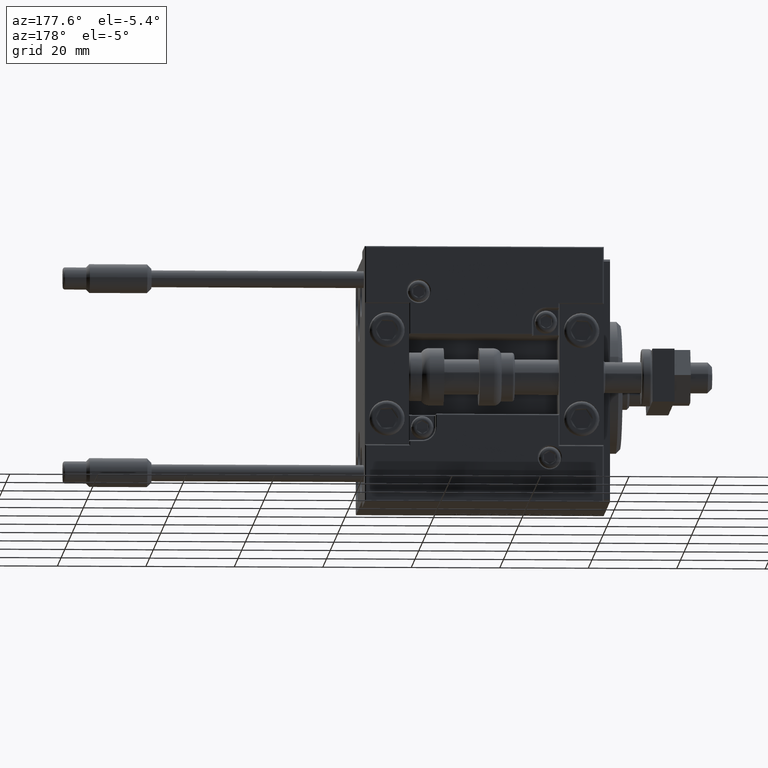
[diagram: clean part render]
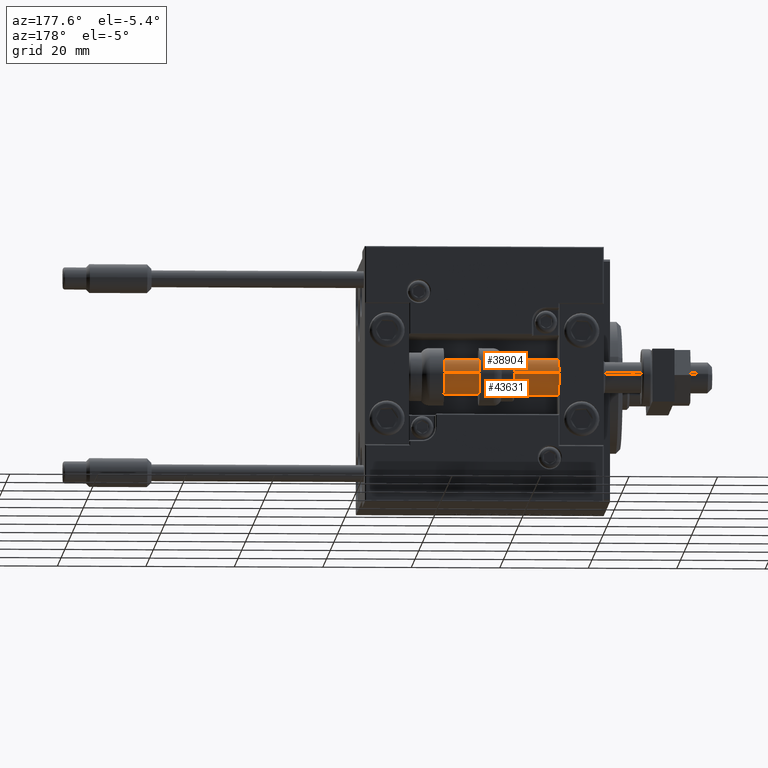
[diagram: same view with one multi-face feature highlighted, each face labeled with its STEP entity id]
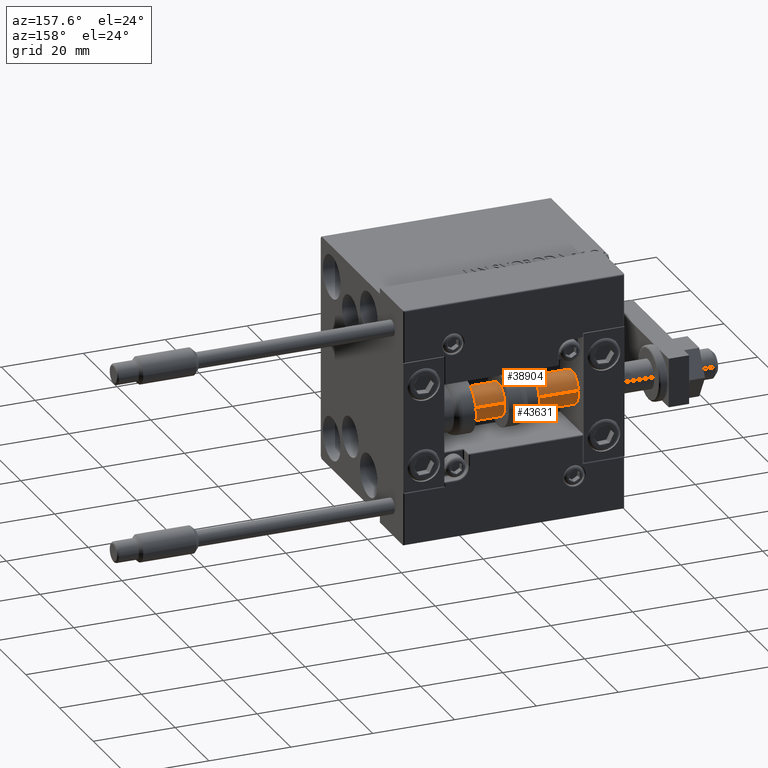
[diagram: same view with one multi-face feature highlighted, each face labeled with its STEP entity id]
A machine part, auxiliary view. The highlighted faces form ONE feature: a constant-radius fillet chain: 2 tangent blend faces with common blend radius 4 mm. The faces share edges in the B-rep.
A second angle (auxiliary view) of the same feature is appended — it is thin or edge-on in the first view.
Their STEP definitions:
[1] entity #43631 (Cylinder):
#758 = EDGE_LOOP ( 'NONE', ( #39339, #4935, #8708, #42799 ) ) ;
#815 = VECTOR ( 'NONE', #17333, 1000.000000000000000 ) ;
#1729 = LINE ( 'NONE', #36741, #815 ) ;
#2586 = EDGE_CURVE ( 'NONE', #20978, #32839, #1729, .T. ) ;
#3585 = AXIS2_PLACEMENT_3D ( 'NONE', #31029, #27203, #47374 ) ;
#4935 = ORIENTED_EDGE ( 'NONE', *, *, #31356, .F. ) ;
#8708 = ORIENTED_EDGE ( 'NONE', *, *, #2586, .T. ) ;
#9788 = CIRCLE ( 'NONE', #47325, 4.000000000000000000 ) ;
#12633 = CARTESIAN_POINT ( 'NONE',  ( 4.000000000000000000, 4.898587196589412829E-16, 56.00000000000000000 ) ) ;
#15430 = EDGE_CURVE ( 'NONE', #34170, #38090, #38515, .T. ) ;
#17333 = DIRECTION ( 'NONE',  ( -0.000000000000000000, -0.000000000000000000, -1.000000000000000000 ) ) ;
#17343 = DIRECTION ( 'NONE',  ( 0.000000000000000000, 0.000000000000000000, 1.000000000000000000 ) ) ;
#17589 = DIRECTION ( 'NONE',  ( 1.000000000000000000, 0.000000000000000000, 0.000000000000000000 ) ) ;
#20978 = VERTEX_POINT ( 'NONE', #35016 ) ;
#25060 = FACE_OUTER_BOUND ( 'NONE', #758, .T. ) ;
#27203 = DIRECTION ( 'NONE',  ( -0.000000000000000000, -0.000000000000000000, 1.000000000000000000 ) ) ;
#28633 = CYLINDRICAL_SURFACE ( 'NONE', #28828, 4.000000000000000000 ) ;
#28828 = AXIS2_PLACEMENT_3D ( 'NONE', #40901, #36565, #47803 ) ;
#30097 = CARTESIAN_POINT ( 'NONE',  ( 4.000000000000000000, 4.898587196589412829E-16, 2.000000000000036415 ) ) ;
#31029 = CARTESIAN_POINT ( 'NONE',  ( 0.000000000000000000, 0.000000000000000000, 2.000000000000036415 ) ) ;
#31356 = EDGE_CURVE ( 'NONE', #20978, #34170, #9788, .T. ) ;
#32839 = VERTEX_POINT ( 'NONE', #37624 ) ;
#34170 = VERTEX_POINT ( 'NONE', #49416 ) ;
#35016 = CARTESIAN_POINT ( 'NONE',  ( -4.000000000000000000, 0.000000000000000000, 56.00000000000000000 ) ) ;
#36565 = DIRECTION ( 'NONE',  ( -0.000000000000000000, -0.000000000000000000, -1.000000000000000000 ) ) ;
#36741 = CARTESIAN_POINT ( 'NONE',  ( -4.000000000000000000, 0.000000000000000000, 56.00000000000000000 ) ) ;
#37624 = CARTESIAN_POINT ( 'NONE',  ( -4.000000000000000000, 0.000000000000000000, 2.000000000000036415 ) ) ;
#37865 = CIRCLE ( 'NONE', #3585, 4.000000000000000000 ) ;
#38090 = VERTEX_POINT ( 'NONE', #30097 ) ;
#38515 = LINE ( 'NONE', #12633, #38611 ) ;
#38611 = VECTOR ( 'NONE', #46427, 1000.000000000000000 ) ;
#39339 = ORIENTED_EDGE ( 'NONE', *, *, #15430, .F. ) ;
#40901 = CARTESIAN_POINT ( 'NONE',  ( 0.000000000000000000, 0.000000000000000000, 56.00000000000000000 ) ) ;
#42799 = ORIENTED_EDGE ( 'NONE', *, *, #49292, .T. ) ;
#43631 = ADVANCED_FACE ( 'NONE', ( #25060 ), #28633, .T. ) ;
#44636 = CARTESIAN_POINT ( 'NONE',  ( 0.000000000000000000, 0.000000000000000000, 56.00000000000000000 ) ) ;
#46427 = DIRECTION ( 'NONE',  ( -0.000000000000000000, -0.000000000000000000, -1.000000000000000000 ) ) ;
#47325 = AXIS2_PLACEMENT_3D ( 'NONE', #44636, #17343, #17589 ) ;
#47374 = DIRECTION ( 'NONE',  ( 1.000000000000000000, 0.000000000000000000, 0.000000000000000000 ) ) ;
#47803 = DIRECTION ( 'NONE',  ( -1.000000000000000000, 0.000000000000000000, 0.000000000000000000 ) ) ;
#49292 = EDGE_CURVE ( 'NONE', #32839, #38090, #37865, .T. ) ;
#49416 = CARTESIAN_POINT ( 'NONE',  ( 4.000000000000000000, 4.898587196589412829E-16, 56.00000000000000000 ) ) ;
[2] entity #38904 (Cylinder):
#383 = CARTESIAN_POINT ( 'NONE',  ( 0.000000000000000000, 0.000000000000000000, 56.00000000000000000 ) ) ;
#815 = VECTOR ( 'NONE', #17333, 1000.000000000000000 ) ;
#1325 = DIRECTION ( 'NONE',  ( 0.000000000000000000, 0.000000000000000000, 1.000000000000000000 ) ) ;
#1729 = LINE ( 'NONE', #36741, #815 ) ;
#2586 = EDGE_CURVE ( 'NONE', #20978, #32839, #1729, .T. ) ;
#10007 = ORIENTED_EDGE ( 'NONE', *, *, #2586, .F. ) ;
#11994 = DIRECTION ( 'NONE',  ( -1.000000000000000000, 0.000000000000000000, 0.000000000000000000 ) ) ;
#12633 = CARTESIAN_POINT ( 'NONE',  ( 4.000000000000000000, 4.898587196589412829E-16, 56.00000000000000000 ) ) ;
#14339 = DIRECTION ( 'NONE',  ( 1.000000000000000000, 0.000000000000000000, 0.000000000000000000 ) ) ;
#15430 = EDGE_CURVE ( 'NONE', #34170, #38090, #38515, .T. ) ;
#16843 = CYLINDRICAL_SURFACE ( 'NONE', #18885, 4.000000000000000000 ) ;
#17034 = ORIENTED_EDGE ( 'NONE', *, *, #37555, .F. ) ;
#17333 = DIRECTION ( 'NONE',  ( -0.000000000000000000, -0.000000000000000000, -1.000000000000000000 ) ) ;
#17432 = DIRECTION ( 'NONE',  ( 1.000000000000000000, 0.000000000000000000, 0.000000000000000000 ) ) ;
#18885 = AXIS2_PLACEMENT_3D ( 'NONE', #35252, #36007, #11994 ) ;
#19561 = ORIENTED_EDGE ( 'NONE', *, *, #40417, .T. ) ;
#20978 = VERTEX_POINT ( 'NONE', #35016 ) ;
#30097 = CARTESIAN_POINT ( 'NONE',  ( 4.000000000000000000, 4.898587196589412829E-16, 2.000000000000036415 ) ) ;
#31913 = FACE_OUTER_BOUND ( 'NONE', #38401, .T. ) ;
#31967 = CIRCLE ( 'NONE', #32805, 4.000000000000000000 ) ;
#32805 = AXIS2_PLACEMENT_3D ( 'NONE', #37100, #49330, #14339 ) ;
#32839 = VERTEX_POINT ( 'NONE', #37624 ) ;
#33500 = AXIS2_PLACEMENT_3D ( 'NONE', #383, #1325, #17432 ) ;
#34170 = VERTEX_POINT ( 'NONE', #49416 ) ;
#35016 = CARTESIAN_POINT ( 'NONE',  ( -4.000000000000000000, 0.000000000000000000, 56.00000000000000000 ) ) ;
#35252 = CARTESIAN_POINT ( 'NONE',  ( 0.000000000000000000, 0.000000000000000000, 56.00000000000000000 ) ) ;
#36007 = DIRECTION ( 'NONE',  ( -0.000000000000000000, -0.000000000000000000, -1.000000000000000000 ) ) ;
#36741 = CARTESIAN_POINT ( 'NONE',  ( -4.000000000000000000, 0.000000000000000000, 56.00000000000000000 ) ) ;
#37100 = CARTESIAN_POINT ( 'NONE',  ( 0.000000000000000000, 0.000000000000000000, 2.000000000000036415 ) ) ;
#37555 = EDGE_CURVE ( 'NONE', #34170, #20978, #45745, .T. ) ;
#37624 = CARTESIAN_POINT ( 'NONE',  ( -4.000000000000000000, 0.000000000000000000, 2.000000000000036415 ) ) ;
#38090 = VERTEX_POINT ( 'NONE', #30097 ) ;
#38401 = EDGE_LOOP ( 'NONE', ( #17034, #42043, #19561, #10007 ) ) ;
#38515 = LINE ( 'NONE', #12633, #38611 ) ;
#38611 = VECTOR ( 'NONE', #46427, 1000.000000000000000 ) ;
#38904 = ADVANCED_FACE ( 'NONE', ( #31913 ), #16843, .T. ) ;
#40417 = EDGE_CURVE ( 'NONE', #38090, #32839, #31967, .T. ) ;
#42043 = ORIENTED_EDGE ( 'NONE', *, *, #15430, .T. ) ;
#45745 = CIRCLE ( 'NONE', #33500, 4.000000000000000000 ) ;
#46427 = DIRECTION ( 'NONE',  ( -0.000000000000000000, -0.000000000000000000, -1.000000000000000000 ) ) ;
#49330 = DIRECTION ( 'NONE',  ( -0.000000000000000000, -0.000000000000000000, 1.000000000000000000 ) ) ;
#49416 = CARTESIAN_POINT ( 'NONE',  ( 4.000000000000000000, 4.898587196589412829E-16, 56.00000000000000000 ) ) ;